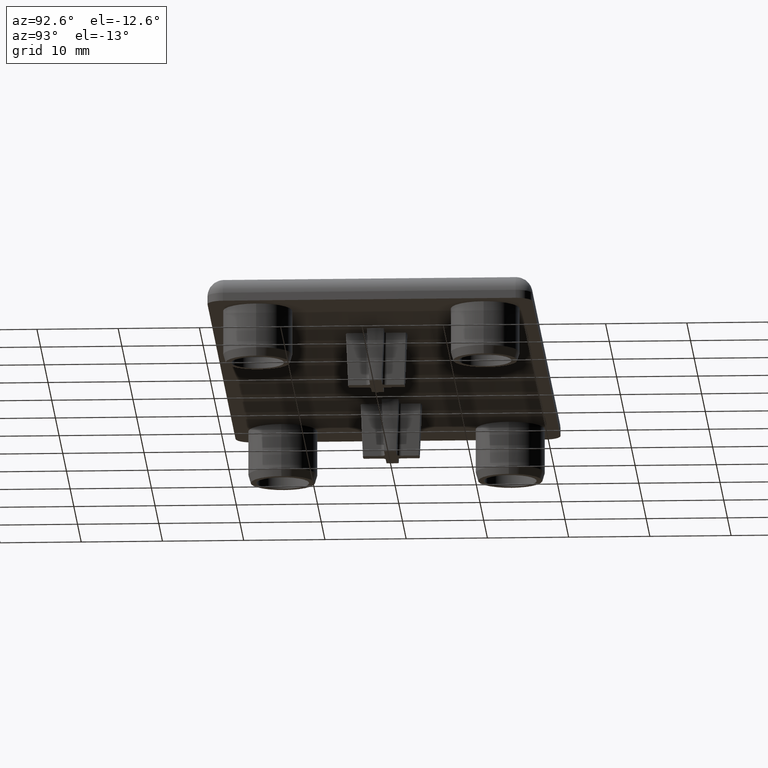
[diagram: clean part render]
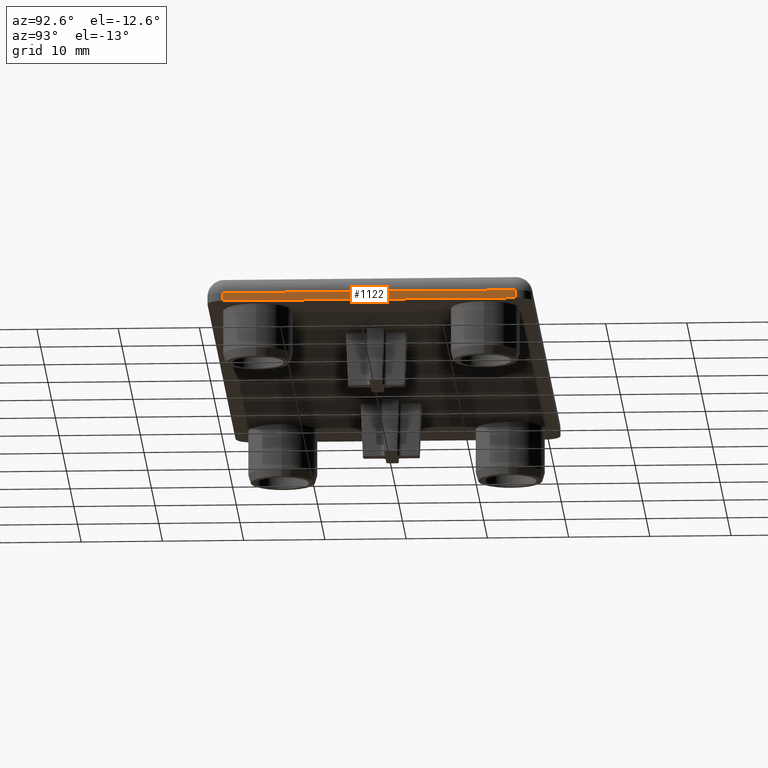
[diagram: same view with one face highlighted and labeled with its STEP entity id]
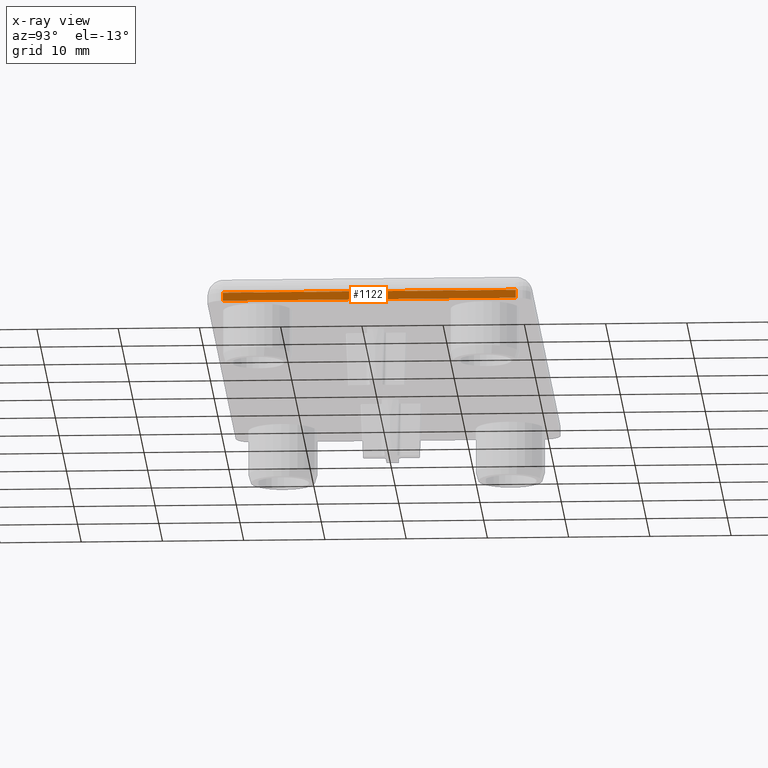
[diagram: x-ray of the same camera — body ghosted, the highlighted face saturated]
A machine part, auxiliary view. The second image highlights one B-rep face of the part: STEP entity #1122.
The next image is the same camera in x-ray: the body ghosted, the highlighted face saturated — about 0% of this face is hidden behind the body in this view.
In plain terms, the highlighted planar face has unit normal (1, 0, 0).
Its self-contained STEP definition (entity closure, byte-faithful):
#36=LINE('',#1686,#104);
#40=LINE('',#1699,#108);
#93=LINE('',#1943,#161);
#96=LINE('',#1958,#164);
#104=VECTOR('',#1354,36.);
#108=VECTOR('',#1366,36.);
#161=VECTOR('',#1565,1.);
#164=VECTOR('',#1586,1.);
#198=PLANE('',#1264);
#308=FACE_OUTER_BOUND('',#402,.T.);
#402=EDGE_LOOP('',(#1018,#1019,#1020,#1021));
#497=VERTEX_POINT('',#1683);
#498=VERTEX_POINT('',#1685);
#501=VERTEX_POINT('',#1695);
#503=VERTEX_POINT('',#1698);
#601=EDGE_CURVE('',#497,#498,#36,.T.);
#607=EDGE_CURVE('',#501,#503,#40,.T.);
#713=EDGE_CURVE('',#498,#501,#93,.T.);
#721=EDGE_CURVE('',#503,#497,#96,.T.);
#1018=ORIENTED_EDGE('',*,*,#713,.F.);
#1019=ORIENTED_EDGE('',*,*,#601,.F.);
#1020=ORIENTED_EDGE('',*,*,#721,.F.);
#1021=ORIENTED_EDGE('',*,*,#607,.F.);
#1122=ADVANCED_FACE('',(#308),#198,.T.);
#1264=AXIS2_PLACEMENT_3D('',#1975,#1609,#1610);
#1354=DIRECTION('',(-1.11022302462516E-16,1.,0.));
#1366=DIRECTION('',(1.11022302462516E-16,-1.,0.));
#1565=DIRECTION('',(0.,0.,-1.));
#1586=DIRECTION('',(0.,0.,1.));
#1609=DIRECTION('center_axis',(1.,1.11022302462516E-16,0.));
#1610=DIRECTION('ref_axis',(0.,1.,0.));
#1683=CARTESIAN_POINT('',(40.,-18.,1.));
#1685=CARTESIAN_POINT('',(40.,18.,1.));
#1686=CARTESIAN_POINT('',(40.,-10.,1.));
#1695=CARTESIAN_POINT('',(40.,18.,0.));
#1698=CARTESIAN_POINT('',(40.,-18.,0.));
#1699=CARTESIAN_POINT('',(40.,20.,0.));
#1943=CARTESIAN_POINT('',(40.,18.,0.));
#1958=CARTESIAN_POINT('',(40.,-18.,0.));
#1975=CARTESIAN_POINT('Origin',(40.,-20.,0.));